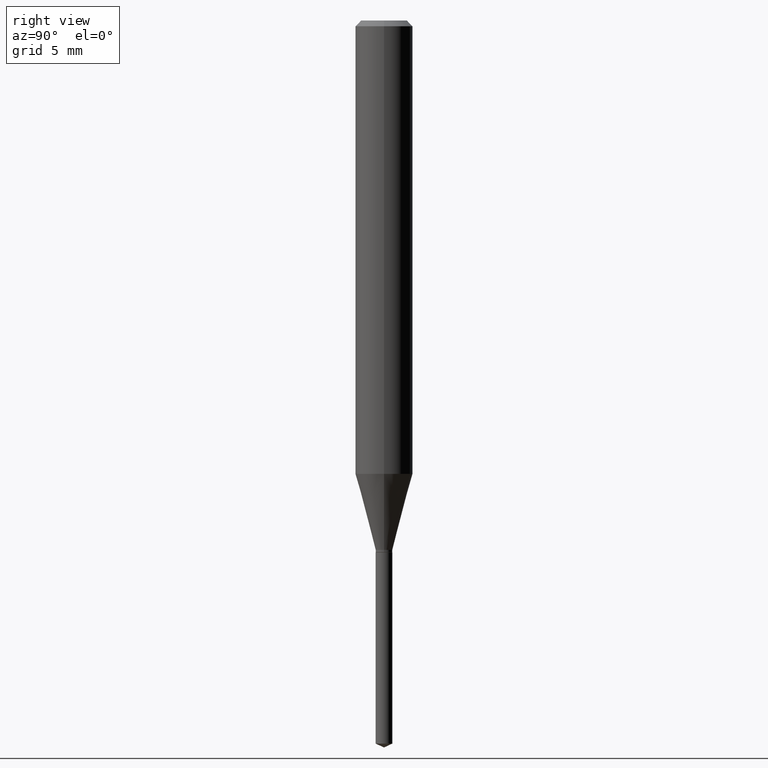
[diagram: clean part render]
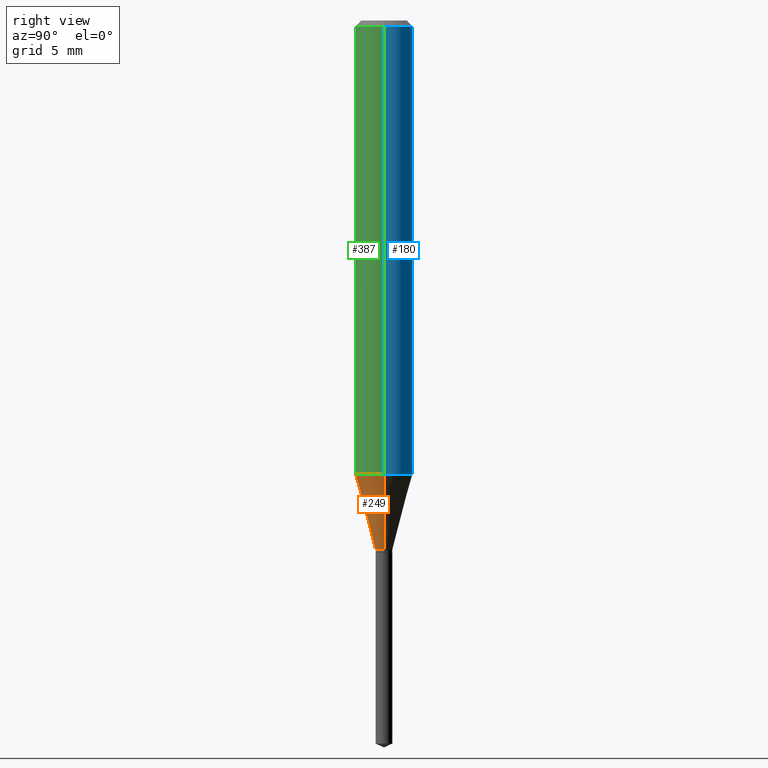
[diagram: same view with three faces highlighted in distinct colors, each labeled with its STEP entity id]
A machine part, right view with three faces highlighted in distinct colors.
Their STEP definitions:

[orange] entity #249 — the highlighted conical surface has half-angle 15 deg.
#6 = ORIENTED_EDGE ( 'NONE', *, *, #101, .F. ) ;
#26 = CARTESIAN_POINT ( 'NONE',  ( -0.05905000000000010935, -2.838071122134274797E-15, -0.9330270711628638747 ) ) ;
#32 = DIRECTION ( 'NONE',  ( 1.000000000000000000, -6.982962677686267499E-15, 0.000000000000000000 ) ) ;
#68 = CARTESIAN_POINT ( 'NONE',  ( 2.281688597855063400E-29, -3.257646607600614684E-15, -0.9330270711628638747 ) ) ;
#79 = VERTEX_POINT ( 'NONE', #26 ) ;
#80 = VECTOR ( 'NONE', #312, 39.37007874015747433 ) ;
#85 = DIRECTION ( 'NONE',  ( -0.2588190451025213501, 5.211531920934551042E-15, 0.9659258262890682012 ) ) ;
#88 = CARTESIAN_POINT ( 'NONE',  ( 2.664093717458087237E-29, -3.803619770535721859E-15, -1.089399999999999924 ) ) ;
#98 = DIRECTION ( 'NONE',  ( -2.445468806185136597E-29, 3.491481338843145583E-15, 1.000000000000000000 ) ) ;
#100 = ORIENTED_EDGE ( 'NONE', *, *, #398, .T. ) ;
#101 = EDGE_CURVE ( 'NONE', #79, #327, #277, .T. ) ;
#102 = CARTESIAN_POINT ( 'NONE',  ( 2.664093717458087237E-29, -3.803619770535721859E-15, -1.089399999999999924 ) ) ;
#103 = CIRCLE ( 'NONE', #455, 0.01714999999999999858 ) ;
#123 = CARTESIAN_POINT ( 'NONE',  ( -0.01714999999999999858, -3.681761691352864687E-15, -1.089399999999999924 ) ) ;
#129 = EDGE_LOOP ( 'NONE', ( #397, #407, #100, #6 ) ) ;
#154 = DIRECTION ( 'NONE',  ( -2.445468806185136597E-29, 3.491481338843145583E-15, 1.000000000000000000 ) ) ;
#158 = VECTOR ( 'NONE', #85, 39.37007874015747433 ) ;
#161 = CARTESIAN_POINT ( 'NONE',  ( 0.01714999999999999858, -3.923377580458041737E-15, -1.089399999999999924 ) ) ;
#163 = CARTESIAN_POINT ( 'NONE',  ( 0.05905000000000010935, -3.669990553717989210E-15, -0.9330270711628638747 ) ) ;
#205 = CARTESIAN_POINT ( 'NONE',  ( -0.01714999999999999858, -3.689792098432204393E-15, -1.089399999999999924 ) ) ;
#210 = VERTEX_POINT ( 'NONE', #452 ) ;
#240 = DIRECTION ( 'NONE',  ( 1.000000000000000000, -6.982962677686279332E-15, 0.000000000000000000 ) ) ;
#249 = ADVANCED_FACE ( 'NONE', ( #351 ), #487, .T. ) ;
#264 = EDGE_CURVE ( 'NONE', #284, #79, #469, .T. ) ;
#277 = CIRCLE ( 'NONE', #425, 0.05905000000000010935 ) ;
#284 = VERTEX_POINT ( 'NONE', #205 ) ;
#312 = DIRECTION ( 'NONE',  ( 0.2588190451025213501, 1.565188264969621968E-15, 0.9659258262890682012 ) ) ;
#327 = VERTEX_POINT ( 'NONE', #163 ) ;
#335 = AXIS2_PLACEMENT_3D ( 'NONE', #88, #459, #240 ) ;
#351 = FACE_OUTER_BOUND ( 'NONE', #129, .T. ) ;
#397 = ORIENTED_EDGE ( 'NONE', *, *, #264, .F. ) ;
#398 = EDGE_CURVE ( 'NONE', #210, #327, #428, .T. ) ;
#407 = ORIENTED_EDGE ( 'NONE', *, *, #445, .T. ) ;
#425 = AXIS2_PLACEMENT_3D ( 'NONE', #68, #154, #32 ) ;
#428 = LINE ( 'NONE', #161, #80 ) ;
#443 = DIRECTION ( 'NONE',  ( 1.000000000000000000, -6.982962677686279332E-15, 0.000000000000000000 ) ) ;
#445 = EDGE_CURVE ( 'NONE', #284, #210, #103, .T. ) ;
#452 = CARTESIAN_POINT ( 'NONE',  ( 0.01714999999999999858, -3.923377580458041737E-15, -1.089399999999999924 ) ) ;
#455 = AXIS2_PLACEMENT_3D ( 'NONE', #102, #98, #443 ) ;
#459 = DIRECTION ( 'NONE',  ( -2.445468806185136597E-29, 3.491481338843145583E-15, 1.000000000000000000 ) ) ;
#469 = LINE ( 'NONE', #123, #158 ) ;
#487 = CONICAL_SURFACE ( 'NONE', #335, 0.01714999999999999858, 0.2617993877991500740 ) ;

[blue] entity #180 — the highlighted cylindrical surface (edge-blend (fillet) strip) has radius 1.4999 mm, axis along (-0, 0, 1).
#2 = EDGE_CURVE ( 'NONE', #327, #79, #90, .T. ) ;
#25 = VECTOR ( 'NONE', #367, 39.37007874015748143 ) ;
#26 = CARTESIAN_POINT ( 'NONE',  ( -0.05905000000000010935, -2.838071122134274797E-15, -0.9330270711628638747 ) ) ;
#70 = DIRECTION ( 'NONE',  ( -2.445468806185136877E-29, 3.491481338843145188E-15, 1.000000000000000000 ) ) ;
#79 = VERTEX_POINT ( 'NONE', #26 ) ;
#90 = CIRCLE ( 'NONE', #334, 0.05905000000000010935 ) ;
#105 = DIRECTION ( 'NONE',  ( -2.445468806185136597E-29, 3.491481338843145583E-15, 1.000000000000000000 ) ) ;
#108 = FACE_OUTER_BOUND ( 'NONE', #369, .T. ) ;
#112 = CIRCLE ( 'NONE', #348, 0.05904999999999999832 ) ;
#117 = CARTESIAN_POINT ( 'NONE',  ( 0.05904999999999999832, -4.535783407291118600E-16, -0.01181000000000006871 ) ) ;
#152 = CARTESIAN_POINT ( 'NONE',  ( -0.05905000000000005383, 4.195754854663395423E-16, -2.904631170795524694E-30 ) ) ;
#155 = EDGE_CURVE ( 'NONE', #79, #437, #450, .T. ) ;
#163 = CARTESIAN_POINT ( 'NONE',  ( 0.05905000000000010935, -3.669990553717989210E-15, -0.9330270711628638747 ) ) ;
#165 = VERTEX_POINT ( 'NONE', #117 ) ;
#169 = AXIS2_PLACEMENT_3D ( 'NONE', #299, #343, #448 ) ;
#175 = ORIENTED_EDGE ( 'NONE', *, *, #2, .T. ) ;
#180 = ADVANCED_FACE ( 'NONE', ( #108 ), #418, .T. ) ;
#203 = CARTESIAN_POINT ( 'NONE',  ( 2.888098660104663328E-31, -4.123439461173779030E-17, -0.01181000000000006871 ) ) ;
#214 = CARTESIAN_POINT ( 'NONE',  ( -0.05904999999999999832, -1.229865015639836319E-15, -0.01181000000000006871 ) ) ;
#260 = DIRECTION ( 'NONE',  ( 1.000000000000000000, -6.982962677686267499E-15, 0.000000000000000000 ) ) ;
#286 = EDGE_CURVE ( 'NONE', #165, #437, #112, .T. ) ;
#293 = ORIENTED_EDGE ( 'NONE', *, *, #155, .T. ) ;
#299 = CARTESIAN_POINT ( 'NONE',  ( 0.000000000000000000, 0.000000000000000000, 0.000000000000000000 ) ) ;
#327 = VERTEX_POINT ( 'NONE', #163 ) ;
#334 = AXIS2_PLACEMENT_3D ( 'NONE', #405, #105, #260 ) ;
#343 = DIRECTION ( 'NONE',  ( -2.445468806185136597E-29, 3.491481338843145583E-15, 1.000000000000000000 ) ) ;
#348 = AXIS2_PLACEMENT_3D ( 'NONE', #203, #355, #385 ) ;
#355 = DIRECTION ( 'NONE',  ( -2.445468806185136597E-29, 3.491481338843145583E-15, 1.000000000000000000 ) ) ;
#357 = ORIENTED_EDGE ( 'NONE', *, *, #286, .F. ) ;
#367 = DIRECTION ( 'NONE',  ( -2.445468806185136877E-29, 3.491481338843145188E-15, 1.000000000000000000 ) ) ;
#369 = EDGE_LOOP ( 'NONE', ( #175, #293, #357, #424 ) ) ;
#385 = DIRECTION ( 'NONE',  ( 1.000000000000000000, -6.982962677686266711E-15, 0.000000000000000000 ) ) ;
#401 = CARTESIAN_POINT ( 'NONE',  ( 0.05905000000000005383, -4.123439461173744271E-16, 2.879382386107502672E-30 ) ) ;
#405 = CARTESIAN_POINT ( 'NONE',  ( 2.281688597855063400E-29, -3.257646607600614684E-15, -0.9330270711628638747 ) ) ;
#412 = VECTOR ( 'NONE', #70, 39.37007874015748143 ) ;
#418 = CYLINDRICAL_SURFACE ( 'NONE', #169, 0.05905000000000005383 ) ;
#424 = ORIENTED_EDGE ( 'NONE', *, *, #446, .F. ) ;
#432 = LINE ( 'NONE', #401, #25 ) ;
#437 = VERTEX_POINT ( 'NONE', #214 ) ;
#446 = EDGE_CURVE ( 'NONE', #327, #165, #432, .T. ) ;
#448 = DIRECTION ( 'NONE',  ( 1.000000000000000000, -6.982962677686266711E-15, 4.876176775795935793E-29 ) ) ;
#450 = LINE ( 'NONE', #152, #412 ) ;

[green] entity #387 — the highlighted cylindrical surface (edge-blend (fillet) strip) has radius 1.4999 mm, axis along (-0, 0, 1).
#10 = CYLINDRICAL_SURFACE ( 'NONE', #396, 0.05905000000000005383 ) ;
#25 = VECTOR ( 'NONE', #367, 39.37007874015748143 ) ;
#26 = CARTESIAN_POINT ( 'NONE',  ( -0.05905000000000010935, -2.838071122134274797E-15, -0.9330270711628638747 ) ) ;
#32 = DIRECTION ( 'NONE',  ( 1.000000000000000000, -6.982962677686267499E-15, 0.000000000000000000 ) ) ;
#45 = FACE_OUTER_BOUND ( 'NONE', #468, .T. ) ;
#68 = CARTESIAN_POINT ( 'NONE',  ( 2.281688597855063400E-29, -3.257646607600614684E-15, -0.9330270711628638747 ) ) ;
#70 = DIRECTION ( 'NONE',  ( -2.445468806185136877E-29, 3.491481338843145188E-15, 1.000000000000000000 ) ) ;
#76 = DIRECTION ( 'NONE',  ( -2.445468806185136597E-29, 3.491481338843145583E-15, 1.000000000000000000 ) ) ;
#79 = VERTEX_POINT ( 'NONE', #26 ) ;
#101 = EDGE_CURVE ( 'NONE', #79, #327, #277, .T. ) ;
#117 = CARTESIAN_POINT ( 'NONE',  ( 0.05904999999999999832, -4.535783407291118600E-16, -0.01181000000000006871 ) ) ;
#119 = CIRCLE ( 'NONE', #177, 0.05904999999999999832 ) ;
#122 = ORIENTED_EDGE ( 'NONE', *, *, #101, .T. ) ;
#152 = CARTESIAN_POINT ( 'NONE',  ( -0.05905000000000005383, 4.195754854663395423E-16, -2.904631170795524694E-30 ) ) ;
#154 = DIRECTION ( 'NONE',  ( -2.445468806185136597E-29, 3.491481338843145583E-15, 1.000000000000000000 ) ) ;
#155 = EDGE_CURVE ( 'NONE', #79, #437, #450, .T. ) ;
#157 = CARTESIAN_POINT ( 'NONE',  ( 2.888098660104663328E-31, -4.123439461173779030E-17, -0.01181000000000006871 ) ) ;
#163 = CARTESIAN_POINT ( 'NONE',  ( 0.05905000000000010935, -3.669990553717989210E-15, -0.9330270711628638747 ) ) ;
#165 = VERTEX_POINT ( 'NONE', #117 ) ;
#177 = AXIS2_PLACEMENT_3D ( 'NONE', #157, #317, #276 ) ;
#214 = CARTESIAN_POINT ( 'NONE',  ( -0.05904999999999999832, -1.229865015639836319E-15, -0.01181000000000006871 ) ) ;
#224 = ORIENTED_EDGE ( 'NONE', *, *, #155, .F. ) ;
#234 = DIRECTION ( 'NONE',  ( 1.000000000000000000, -6.982962677686266711E-15, 4.876176775795935793E-29 ) ) ;
#276 = DIRECTION ( 'NONE',  ( 1.000000000000000000, -6.982962677686266711E-15, 0.000000000000000000 ) ) ;
#277 = CIRCLE ( 'NONE', #425, 0.05905000000000010935 ) ;
#317 = DIRECTION ( 'NONE',  ( -2.445468806185136597E-29, 3.491481338843145583E-15, 1.000000000000000000 ) ) ;
#327 = VERTEX_POINT ( 'NONE', #163 ) ;
#354 = EDGE_CURVE ( 'NONE', #437, #165, #119, .T. ) ;
#361 = ORIENTED_EDGE ( 'NONE', *, *, #354, .F. ) ;
#367 = DIRECTION ( 'NONE',  ( -2.445468806185136877E-29, 3.491481338843145188E-15, 1.000000000000000000 ) ) ;
#387 = ADVANCED_FACE ( 'NONE', ( #45 ), #10, .T. ) ;
#396 = AXIS2_PLACEMENT_3D ( 'NONE', #466, #76, #234 ) ;
#401 = CARTESIAN_POINT ( 'NONE',  ( 0.05905000000000005383, -4.123439461173744271E-16, 2.879382386107502672E-30 ) ) ;
#412 = VECTOR ( 'NONE', #70, 39.37007874015748143 ) ;
#425 = AXIS2_PLACEMENT_3D ( 'NONE', #68, #154, #32 ) ;
#432 = LINE ( 'NONE', #401, #25 ) ;
#437 = VERTEX_POINT ( 'NONE', #214 ) ;
#446 = EDGE_CURVE ( 'NONE', #327, #165, #432, .T. ) ;
#450 = LINE ( 'NONE', #152, #412 ) ;
#466 = CARTESIAN_POINT ( 'NONE',  ( 0.000000000000000000, 0.000000000000000000, 0.000000000000000000 ) ) ;
#468 = EDGE_LOOP ( 'NONE', ( #224, #122, #477, #361 ) ) ;
#477 = ORIENTED_EDGE ( 'NONE', *, *, #446, .T. ) ;